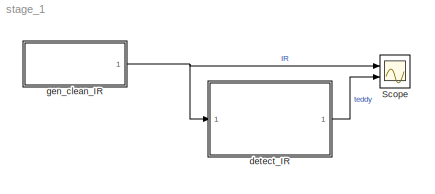
MODEL stage_1
KIND model
BLOCK [Scope] Scope
  NumInputPorts = 2
  Ports = [2]
  SID = 7
  ScopeSpecificationString = Simulink.scopes.TimeScopeBlockCfg('CurrentConfiguration', extmgr.ConfigurationSet(extmgr.Configuration('Core','General UI',true),extmgr.Configuration('Core','Source UI',true),extmgr.Configuration('Sources','WiredSimulink',true),extmgr.Configuration('Visuals','Time Domain',true,'SerializedDisplays',{struct('MinYLimReal','-0.125','MaxYLimReal','1.125','YLabelReal','','MinYLimMag','0.00000','MaxYLimM...<+2008ch>
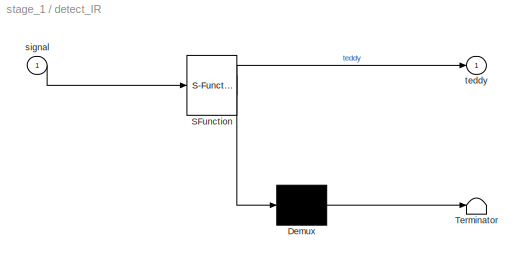
BLOCK [SubSystem] detect_IR
  ErrorFcn = Stateflow.Translate.translate
  PermitHierarchicalResolution = ExplicitOnly
  Ports = [1, 1]
  RequestExecContextInheritance = off
  SFBlockType = Chart
  SID = 15
  TreatAsAtomicUnit = on
  Variant = off
BLOCK [Demux] detect_IR/ Demux 
  Outputs = 1
  Ports = [1, 1]
  SID = 15::78
BLOCK [S-Function] detect_IR/ SFunction 
  EnableBusSupport = on
  FunctionName = sf_sfun
  PortCounts = [1 2]
  Ports = [1, 2]
  SFunctionDeploymentMode = off
  SID = 15::77
  Tag = Stateflow S-Function stage_1 3
BLOCK [Terminator] detect_IR/ Terminator 
  SID = 15::79
BLOCK [Inport] detect_IR/signal
  IconDisplay = Port number
  SID = 15::81
BLOCK [Outport] detect_IR/teddy
  IconDisplay = Port number
  SID = 15::82
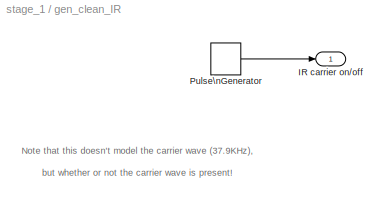
BLOCK [SubSystem] gen_clean_IR
  Ports = [0, 1]
  RequestExecContextInheritance = off
  SID = 1
  Variant = off
BLOCK [Outport] gen_clean_IR/IR carrier on//off
  IconDisplay = Port number
  SID = 3
BLOCK [DiscretePulseGenerator] gen_clean_IR/Pulse\nGenerator
  Period = .001180
  Ports = [0, 1]
  PulseType = Time based
  PulseWidth = 50
  SID = 8
ANNOTATION gen_clean_IR: \n \n Note that this doesn't model the carrier wave (37.9KHz), \n but whether or not the carrier wave is present!
LINE detect_IR/ Demux :1 -> detect_IR/ Terminator :1
LINE detect_IR/ SFunction :1 -> detect_IR/ Demux :1
LINE detect_IR/ SFunction :2 -> detect_IR/teddy:1
LINE detect_IR/signal:1 -> detect_IR/ SFunction :1
LINE detect_IR:1 -> Scope:2
LINE gen_clean_IR/Pulse\nGenerator:1 -> gen_clean_IR/IR carrier on//off:1
NET gen_clean_IR:1 -> Scope:1, detect_IR:1
note: NET lines group one-source signal fan-out (src -> all destinations, sorted); 1:1 wires keep LINE
CHART detect_IR states=7 transitions=11
  STATE_LABEL 'NoTeddy\\n% signal is 1,\\n% waiting for 0\\nentry:\\nteddy = 0'
  STATE_LABEL "Something\\n% signal is 0,\\n% waiting for 1\\nentry:\\n% don't change teddy"
  STATE_LABEL 'Note that the \\"signal\\" must be treated as inverted,\\nso \'0\' is \\"carrier detected\\" and \'1\' is \\"carrier absent\\"'
  STATE_LABEL 'WasTeddy\\n% signal is 1\\n% waiting for 0\\nentry:\\nteddy = 1'
  STATE_LABEL 'TooMuch\\n% signal is 0,\\n% waiting for 1\\nentry:\\nteddy = 0'
  STATE_LABEL 'ConfirmZero'
  STATE_LABEL 'ConfirmOne'
